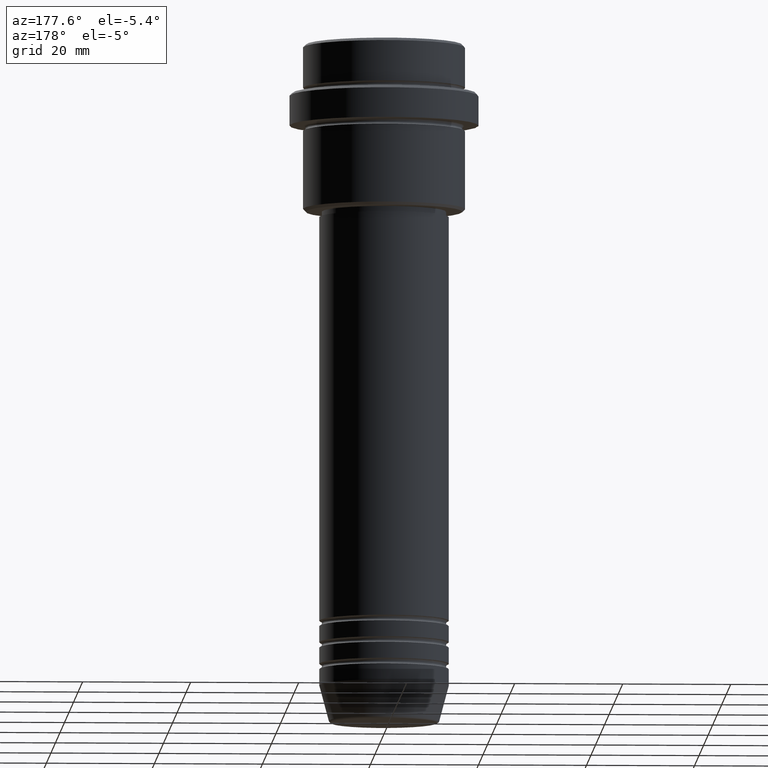
[diagram: clean part render]
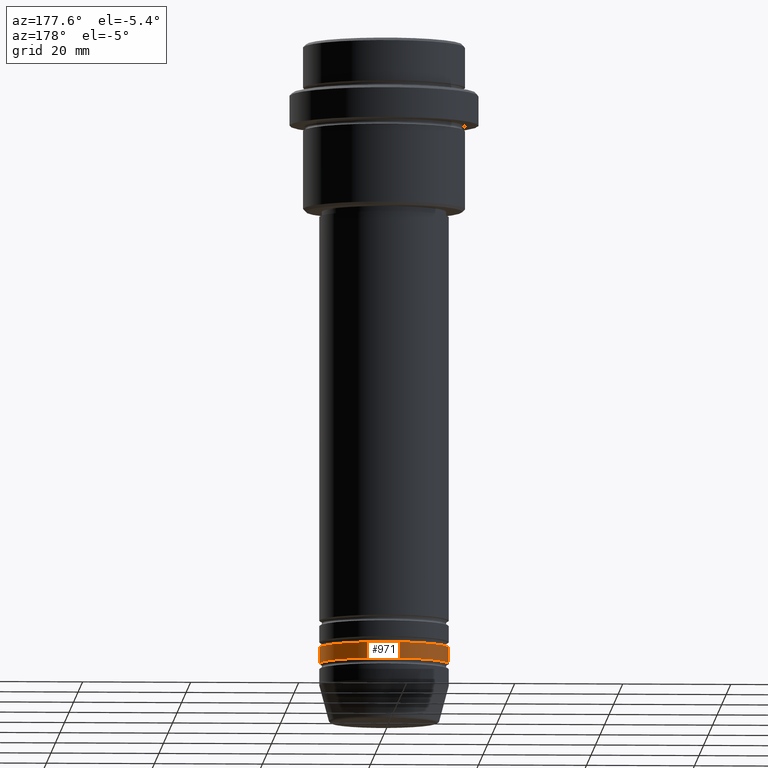
[diagram: same view with one face highlighted and labeled with its STEP entity id]
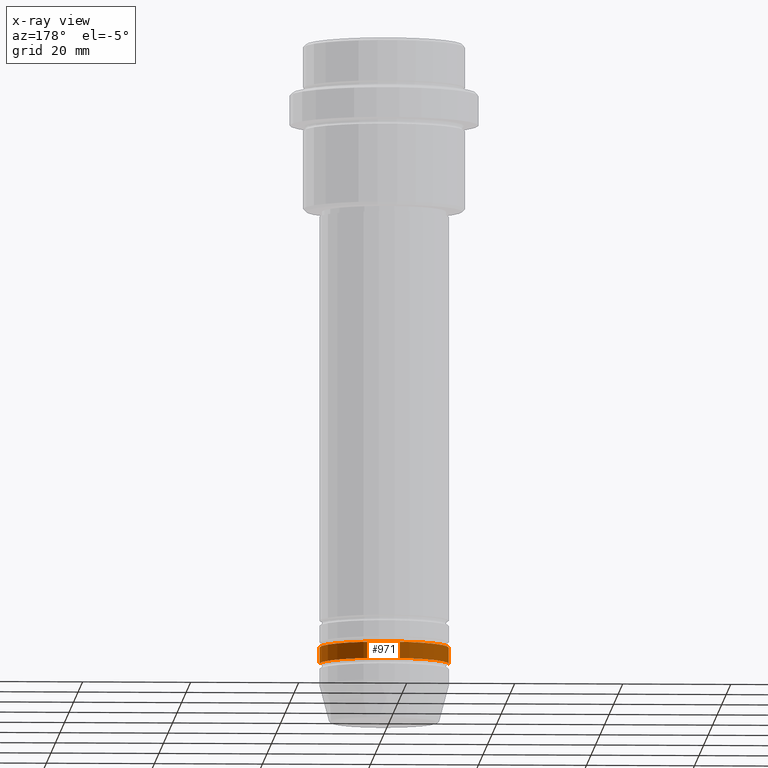
[diagram: x-ray of the same camera — body ghosted, the highlighted face saturated]
A machine part, auxiliary view. The second image highlights one B-rep face of the part: STEP entity #971.
The next image is the same camera in x-ray: the body ghosted, the highlighted face saturated — about 0% of this face is hidden behind the body in this view.
In plain terms, the highlighted cylindrical surface (partial cylindrical patch) has radius 12 mm, axis along (-0, -0, 1).
Its self-contained STEP definition (entity closure, byte-faithful):
#85 = EDGE_CURVE ( 'NONE', #944, #824, #87, .T. ) ;
#87 = CIRCLE ( 'NONE', #745, 12.00000000000000000 ) ;
#93 = DIRECTION ( 'NONE',  ( 1.000000000000000000, 0.000000000000000000, 0.000000000000000000 ) ) ;
#105 = CARTESIAN_POINT ( 'NONE',  ( 12.00000000000000000, 0.000000000000000000, 0.000000000000000000 ) ) ;
#146 = EDGE_CURVE ( 'NONE', #1165, #276, #888, .T. ) ;
#224 = EDGE_LOOP ( 'NONE', ( #290, #347, #843, #1040 ) ) ;
#276 = VERTEX_POINT ( 'NONE', #324 ) ;
#290 = ORIENTED_EDGE ( 'NONE', *, *, #146, .T. ) ;
#324 = CARTESIAN_POINT ( 'NONE',  ( -12.00000000000000000, 1.469576158976823947E-15, -114.9999999999998579 ) ) ;
#341 = CARTESIAN_POINT ( 'NONE',  ( 0.000000000000000000, 0.000000000000000000, -114.9999999999998579 ) ) ;
#347 = ORIENTED_EDGE ( 'NONE', *, *, #802, .T. ) ;
#356 = VECTOR ( 'NONE', #759, 1000.000000000000000 ) ;
#372 = CYLINDRICAL_SURFACE ( 'NONE', #730, 12.00000000000000000 ) ;
#421 = CARTESIAN_POINT ( 'NONE',  ( -12.00000000000000000, 1.469576158976823947E-15, -111.9999999999998721 ) ) ;
#488 = CARTESIAN_POINT ( 'NONE',  ( 12.00000000000000000, 0.000000000000000000, -114.9999999999998579 ) ) ;
#606 = CARTESIAN_POINT ( 'NONE',  ( 0.000000000000000000, 0.000000000000000000, 0.000000000000000000 ) ) ;
#632 = CARTESIAN_POINT ( 'NONE',  ( 0.000000000000000000, 0.000000000000000000, -111.9999999999998721 ) ) ;
#641 = CARTESIAN_POINT ( 'NONE',  ( -12.00000000000000000, 1.469576158976823947E-15, 0.000000000000000000 ) ) ;
#696 = DIRECTION ( 'NONE',  ( -0.000000000000000000, -0.000000000000000000, 1.000000000000000000 ) ) ;
#730 = AXIS2_PLACEMENT_3D ( 'NONE', #606, #696, #1134 ) ;
#745 = AXIS2_PLACEMENT_3D ( 'NONE', #632, #1064, #93 ) ;
#749 = VECTOR ( 'NONE', #970, 1000.000000000000000 ) ;
#759 = DIRECTION ( 'NONE',  ( -0.000000000000000000, -0.000000000000000000, 1.000000000000000000 ) ) ;
#781 = EDGE_CURVE ( 'NONE', #1165, #944, #1295, .T. ) ;
#802 = EDGE_CURVE ( 'NONE', #276, #824, #958, .T. ) ;
#824 = VERTEX_POINT ( 'NONE', #421 ) ;
#843 = ORIENTED_EDGE ( 'NONE', *, *, #85, .F. ) ;
#881 = CARTESIAN_POINT ( 'NONE',  ( 12.00000000000000000, 0.000000000000000000, -111.9999999999998721 ) ) ;
#888 = CIRCLE ( 'NONE', #951, 12.00000000000000000 ) ;
#944 = VERTEX_POINT ( 'NONE', #881 ) ;
#951 = AXIS2_PLACEMENT_3D ( 'NONE', #341, #1017, #990 ) ;
#958 = LINE ( 'NONE', #641, #356 ) ;
#970 = DIRECTION ( 'NONE',  ( -0.000000000000000000, -0.000000000000000000, 1.000000000000000000 ) ) ;
#971 = ADVANCED_FACE ( 'NONE', ( #1349 ), #372, .T. ) ;
#990 = DIRECTION ( 'NONE',  ( 1.000000000000000000, 0.000000000000000000, 0.000000000000000000 ) ) ;
#1017 = DIRECTION ( 'NONE',  ( -0.000000000000000000, -0.000000000000000000, 1.000000000000000000 ) ) ;
#1040 = ORIENTED_EDGE ( 'NONE', *, *, #781, .F. ) ;
#1064 = DIRECTION ( 'NONE',  ( -0.000000000000000000, -0.000000000000000000, 1.000000000000000000 ) ) ;
#1134 = DIRECTION ( 'NONE',  ( 1.000000000000000000, 0.000000000000000000, 0.000000000000000000 ) ) ;
#1165 = VERTEX_POINT ( 'NONE', #488 ) ;
#1295 = LINE ( 'NONE', #105, #749 ) ;
#1349 = FACE_OUTER_BOUND ( 'NONE', #224, .T. ) ;